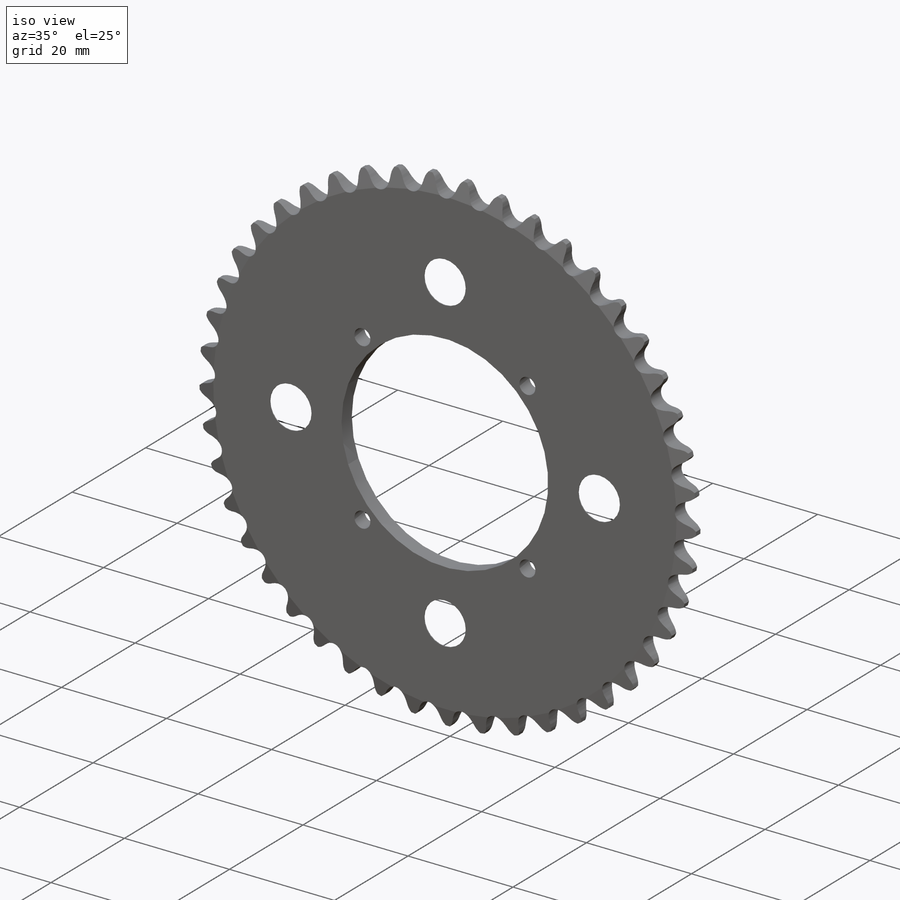
[diagram: iso view]
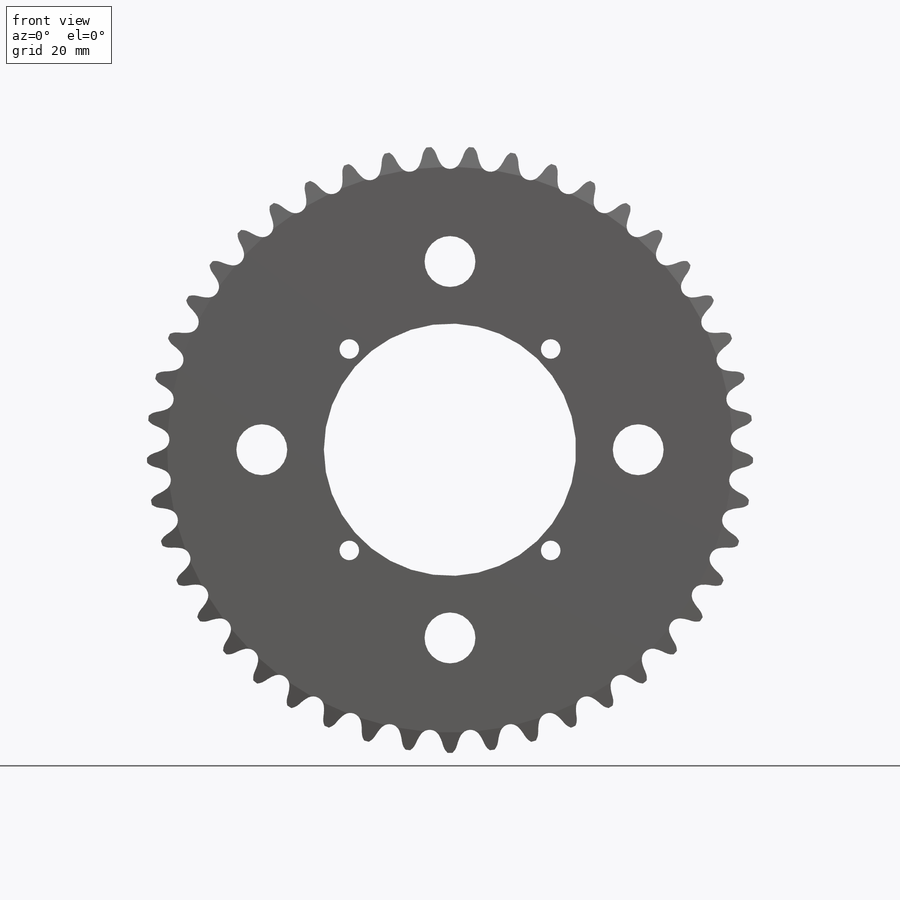
[diagram: front view]
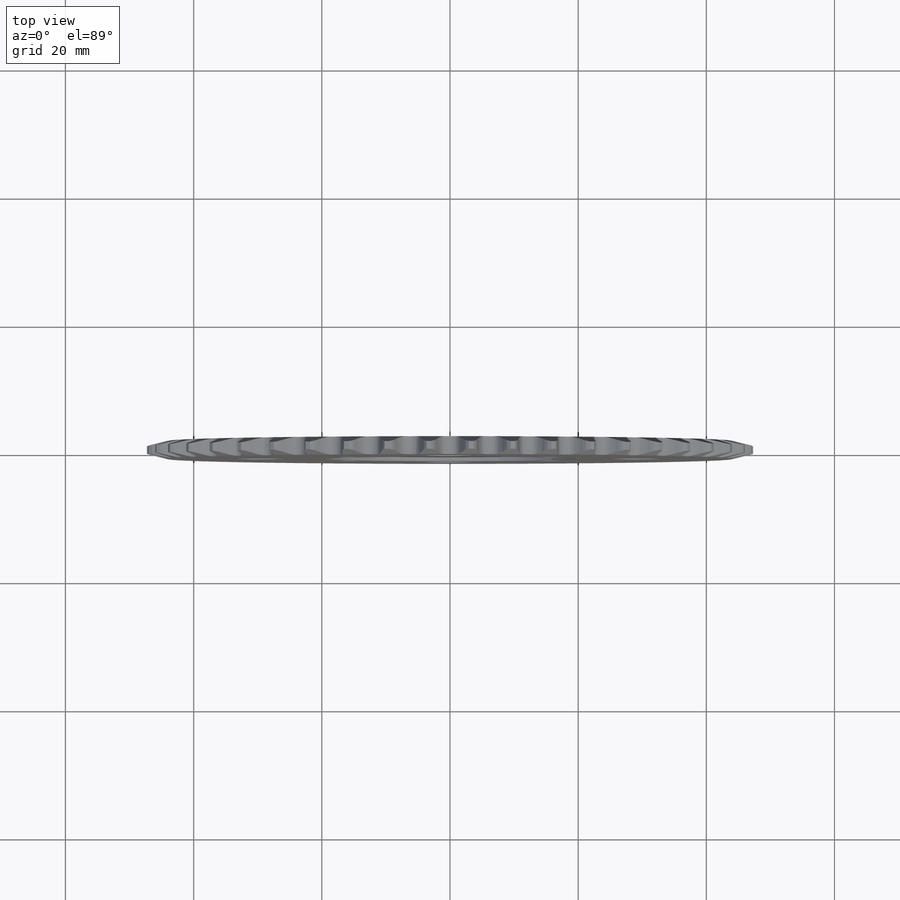
[diagram: top view]
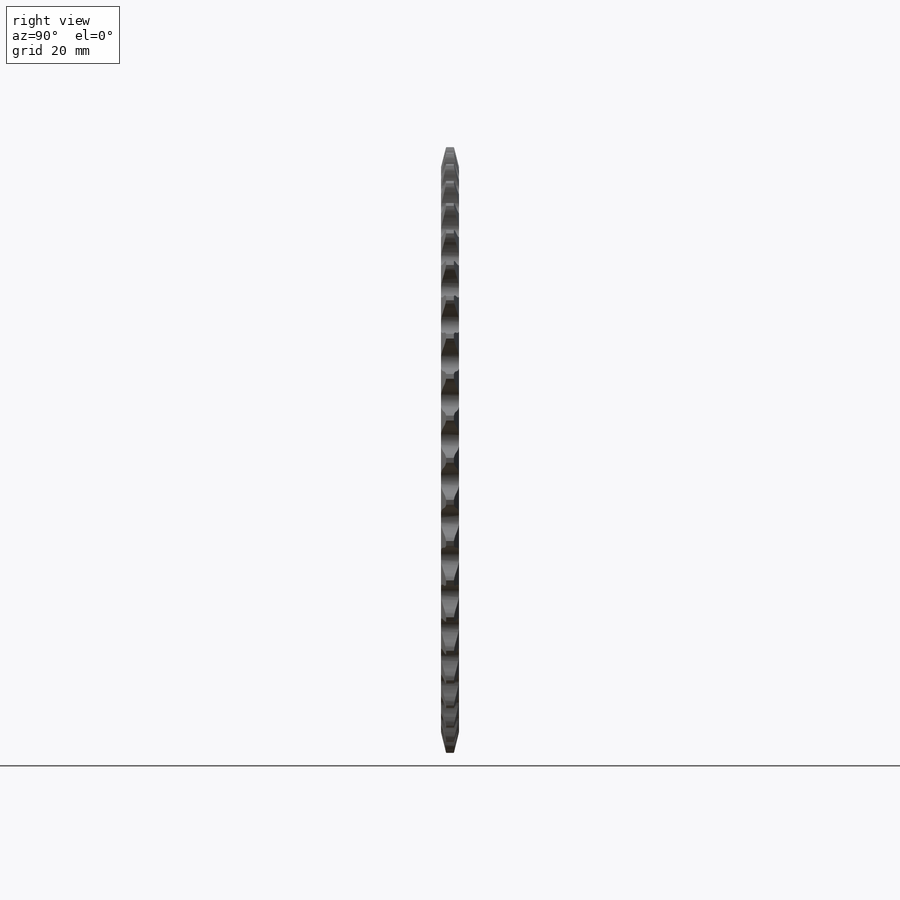
[diagram: right view]
SOLIDWORKS PART (.sldprt)
format: sldprt  version: not decoded by parser v0  size: 681,984 bytes
history: native  units: mm
features: sketch x3, cut_extrude x2, material x1, revolve x1, pattern_circular x1, chamfer x1 (+11 scaffold rows collapsed)
feature tree (20):
  scaffold x11  (default folders/planes/origin — collapsed)
  material  "Material <not specified>"
  sketch  "Sprocket-BaseSketch"  dims[Hub Surface=1.397mm RightSide (1)=~0.79375mm RightSide (2)=3.175mm OD=~47.309615mm LeftSide (1)=~0.79375mm LeftSide (2)=3.175mm Tooth Width=2.794mm Bore=19.685mm]
  revolve  "25 (04C) ANSI (ISO) Chain Number, 3.584in P.D."  Angle=360deg
  sketch  "Tooth-Sketch"
  cut_extrude  "Tooth-Cut, Number of teeth: 45"  Depth=25.4mm
  pattern_circular  "Tooth Pattern, 45 / 45"  Count=45 Angle=8deg
  sketch  "Sketch1"  dims[c1.D1=7.9375mm c1.D6=3.048mm c1.D2=~29.36875mm c1.D4=~22.021477mm c2.D4=45.0deg c2.D5=22.225mm c2.D3=4.0 c2.D7=4.0]
  cut_extrude  "Cut-Extrude1"  [1 undecoded]
  chamfer  "Chamfer1"  Distance=3.048mm Angle=41deg
decode coverage: 6 of 8 modeling features carry decoded parameters
note: ~ marks probable driven/reference dimensions
note: 1 parameter value undecoded
note: suppression state not decoded; provenance and decode notes live in map.json
